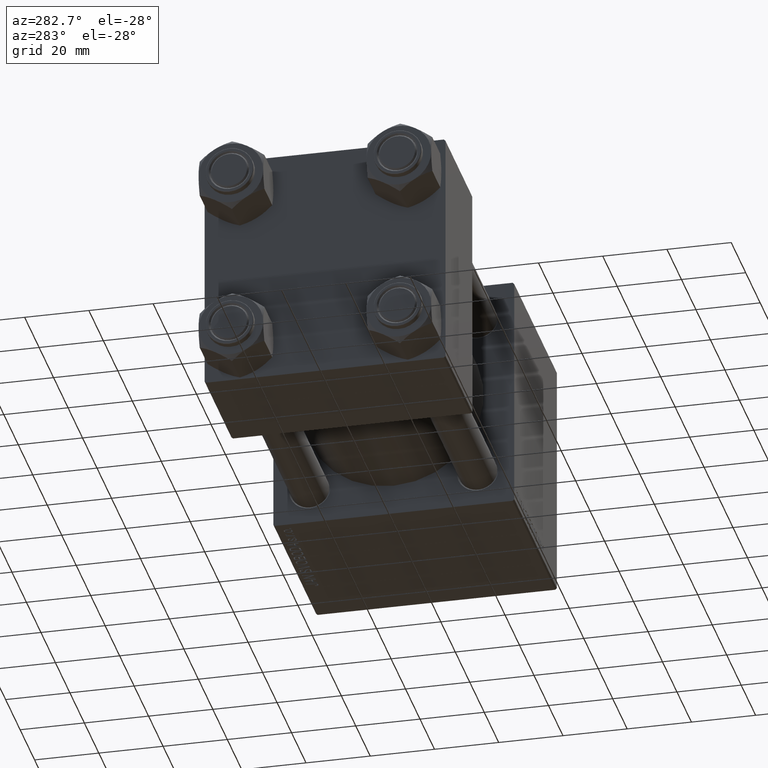
[diagram: clean part render]
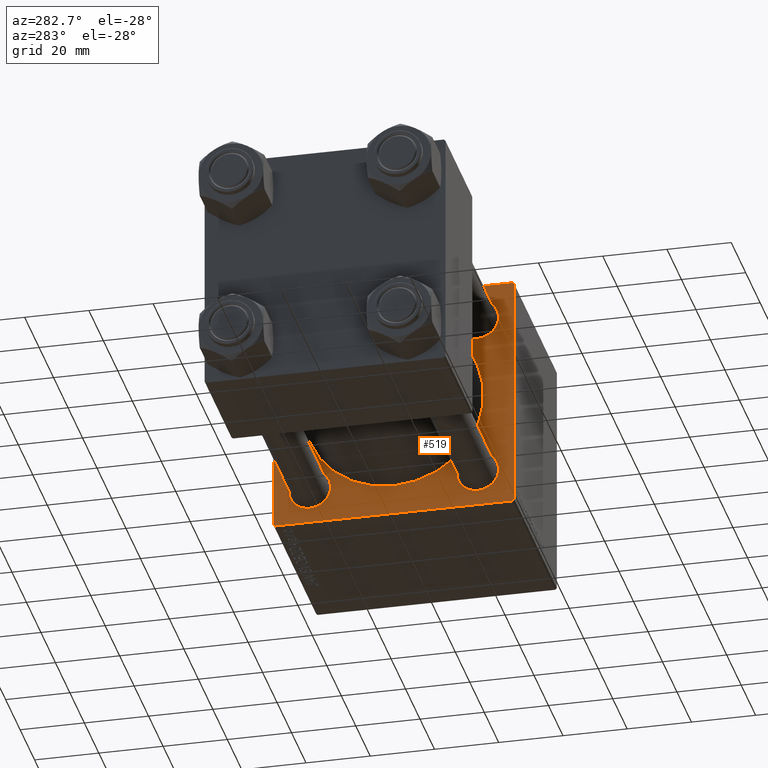
[diagram: same view with one face highlighted and labeled with its STEP entity id]
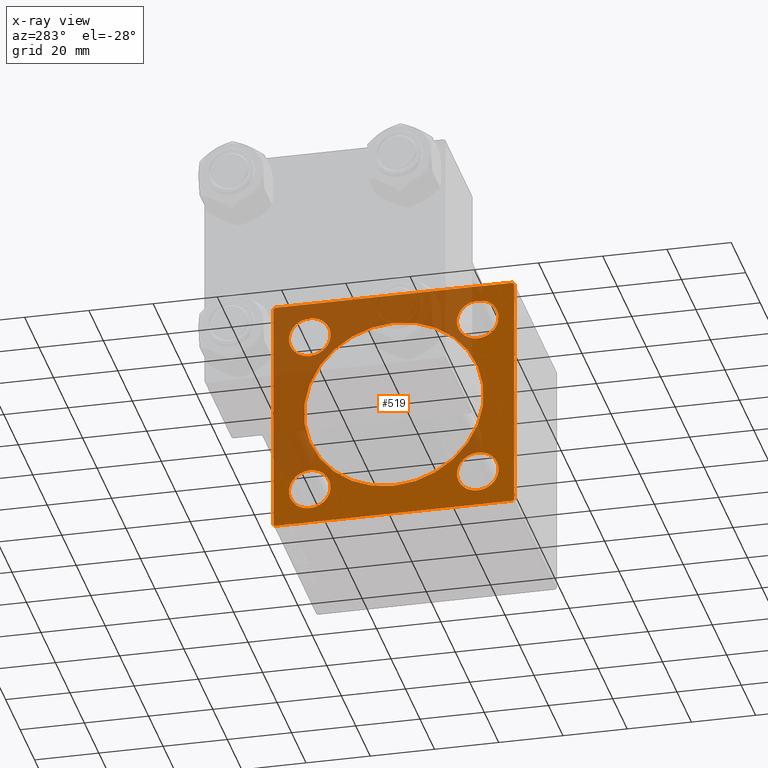
[diagram: x-ray of the same camera — body ghosted, the highlighted face saturated]
A machine part, auxiliary view. The second image highlights one B-rep face of the part: STEP entity #519.
The next image is the same camera in x-ray: the body ghosted, the highlighted face saturated — about 46% of this face is hidden behind the body in this view.
In plain terms, the highlighted planar face has unit normal (-1, 0, 0).
Its self-contained STEP definition (entity closure, byte-faithful):
#201 = VECTOR ( 'NONE', #18116, 1000.000000000000000 ) ;
#243 = CARTESIAN_POINT ( 'NONE',  ( 95.00000000000000000, 37.50000000000000000, 36.99999999999999289 ) ) ;
#381 = VERTEX_POINT ( 'NONE', #15387 ) ;
#503 = EDGE_LOOP ( 'NONE', ( #21857, #36087 ) ) ;
#519 = ADVANCED_FACE ( 'NONE', ( #40491, #33139, #28566, #1910, #44047, #48353 ), #24755, .T. ) ;
#652 = CARTESIAN_POINT ( 'NONE',  ( 95.00000000000000000, -2.602085213965210642E-15, 28.00000000000000000 ) ) ;
#1149 = DIRECTION ( 'NONE',  ( 0.000000000000000000, 0.000000000000000000, -1.000000000000000000 ) ) ;
#1871 = AXIS2_PLACEMENT_3D ( 'NONE', #29195, #24614, #6097 ) ;
#1910 = FACE_BOUND ( 'NONE', #36842, .T. ) ;
#1943 = AXIS2_PLACEMENT_3D ( 'NONE', #19942, #44295, #1149 ) ;
#2584 = CARTESIAN_POINT ( 'NONE',  ( 95.00000000000000000, 37.00000000000000000, -37.50000000000000000 ) ) ;
#2642 = CARTESIAN_POINT ( 'NONE',  ( 95.00000000000000000, 37.50000000000000000, -37.50000000000000000 ) ) ;
#4689 = ORIENTED_EDGE ( 'NONE', *, *, #6693, .T. ) ;
#4897 = VERTEX_POINT ( 'NONE', #19484 ) ;
#5385 = CARTESIAN_POINT ( 'NONE',  ( 95.00000000000000000, 26.14999999999999858, 26.15000000000000213 ) ) ;
#5469 = ORIENTED_EDGE ( 'NONE', *, *, #31813, .F. ) ;
#5474 = DIRECTION ( 'NONE',  ( 0.000000000000000000, 0.000000000000000000, 1.000000000000000000 ) ) ;
#5627 = DIRECTION ( 'NONE',  ( 1.000000000000000000, 0.000000000000000000, -0.000000000000000000 ) ) ;
#5824 = LINE ( 'NONE', #36804, #11855 ) ;
#5868 = DIRECTION ( 'NONE',  ( 0.000000000000000000, -0.7071067811865671127, 0.7071067811865279218 ) ) ;
#6097 = DIRECTION ( 'NONE',  ( 0.000000000000000000, 0.000000000000000000, 1.000000000000000000 ) ) ;
#6678 = ORIENTED_EDGE ( 'NONE', *, *, #15017, .T. ) ;
#6693 = EDGE_CURVE ( 'NONE', #381, #32028, #18940, .T. ) ;
#7335 = CARTESIAN_POINT ( 'NONE',  ( 95.00000000000000000, 26.14999999999999858, -19.64999999999998792 ) ) ;
#7951 = DIRECTION ( 'NONE',  ( 1.000000000000000000, 0.000000000000000000, -0.000000000000000000 ) ) ;
#8470 = CIRCLE ( 'NONE', #27927, 6.500000000000015987 ) ;
#9007 = ORIENTED_EDGE ( 'NONE', *, *, #16150, .T. ) ;
#9192 = DIRECTION ( 'NONE',  ( 0.000000000000000000, 0.000000000000000000, 1.000000000000000000 ) ) ;
#9490 = ORIENTED_EDGE ( 'NONE', *, *, #46058, .T. ) ;
#9602 = VERTEX_POINT ( 'NONE', #243 ) ;
#10574 = DIRECTION ( 'NONE',  ( 1.000000000000000000, 0.000000000000000000, -0.000000000000000000 ) ) ;
#10590 = EDGE_CURVE ( 'NONE', #15857, #16969, #10803, .T. ) ;
#10690 = CARTESIAN_POINT ( 'NONE',  ( 95.00000000000000000, -26.14999999999999147, -32.65000000000002700 ) ) ;
#10803 = CIRCLE ( 'NONE', #39176, 6.500000000000015987 ) ;
#10857 = CIRCLE ( 'NONE', #23830, 6.500000000000015987 ) ;
#11097 = CARTESIAN_POINT ( 'NONE',  ( 95.00000000000000000, 26.14999999999999858, 32.65000000000001990 ) ) ;
#11327 = CARTESIAN_POINT ( 'NONE',  ( 95.00000000000000000, 26.14999999999999858, 26.15000000000000213 ) ) ;
#11564 = CIRCLE ( 'NONE', #1871, 6.500000000000015987 ) ;
#11566 = CARTESIAN_POINT ( 'NONE',  ( 95.00000000000000000, -37.24999999999997158, 37.24999999999997158 ) ) ;
#11855 = VECTOR ( 'NONE', #25870, 1000.000000000000000 ) ;
#12827 = ORIENTED_EDGE ( 'NONE', *, *, #24582, .T. ) ;
#13774 = VERTEX_POINT ( 'NONE', #26415 ) ;
#13827 = CARTESIAN_POINT ( 'NONE',  ( 95.00000000000000000, 0.000000000000000000, 0.000000000000000000 ) ) ;
#14042 = VERTEX_POINT ( 'NONE', #37519 ) ;
#15017 = EDGE_CURVE ( 'NONE', #9602, #16272, #27857, .T. ) ;
#15387 = CARTESIAN_POINT ( 'NONE',  ( 95.00000000000000000, -37.50000000000000000, 36.99999999999995026 ) ) ;
#15857 = VERTEX_POINT ( 'NONE', #29743 ) ;
#16150 = EDGE_CURVE ( 'NONE', #44329, #27515, #22811, .T. ) ;
#16272 = VERTEX_POINT ( 'NONE', #38280 ) ;
#16447 = ORIENTED_EDGE ( 'NONE', *, *, #42515, .T. ) ;
#16748 = CARTESIAN_POINT ( 'NONE',  ( 95.00000000000000000, 37.00000000000000000, 37.49999999999999289 ) ) ;
#16969 = VERTEX_POINT ( 'NONE', #10690 ) ;
#17282 = VERTEX_POINT ( 'NONE', #29630 ) ;
#17496 = ORIENTED_EDGE ( 'NONE', *, *, #19003, .T. ) ;
#18116 = DIRECTION ( 'NONE',  ( 0.000000000000000000, -1.000000000000000000, 0.000000000000000000 ) ) ;
#18940 = LINE ( 'NONE', #11566, #23663 ) ;
#19003 = EDGE_CURVE ( 'NONE', #16272, #34470, #45031, .T. ) ;
#19066 = EDGE_CURVE ( 'NONE', #34470, #13774, #33612, .T. ) ;
#19241 = DIRECTION ( 'NONE',  ( 0.000000000000000000, 0.000000000000000000, 1.000000000000000000 ) ) ;
#19484 = CARTESIAN_POINT ( 'NONE',  ( 95.00000000000000000, -26.14999999999999147, 32.65000000000003411 ) ) ;
#19648 = EDGE_CURVE ( 'NONE', #4897, #14042, #11564, .T. ) ;
#19768 = VECTOR ( 'NONE', #5868, 1000.000000000000000 ) ;
#19942 = CARTESIAN_POINT ( 'NONE',  ( 95.00000000000000000, -2.602085213965210642E-15, 0.000000000000000000 ) ) ;
#19992 = CARTESIAN_POINT ( 'NONE',  ( 95.00000000000000000, 37.50000000000000000, 37.49999999999999289 ) ) ;
#21103 = LINE ( 'NONE', #32796, #33107 ) ;
#21857 = ORIENTED_EDGE ( 'NONE', *, *, #45041, .T. ) ;
#22368 = CIRCLE ( 'NONE', #33725, 6.500000000000015987 ) ;
#22515 = ORIENTED_EDGE ( 'NONE', *, *, #10590, .T. ) ;
#22811 = CIRCLE ( 'NONE', #23638, 28.00000000000000000 ) ;
#23427 = DIRECTION ( 'NONE',  ( 0.000000000000000000, 0.000000000000000000, 1.000000000000000000 ) ) ;
#23638 = AXIS2_PLACEMENT_3D ( 'NONE', #32993, #40096, #48702 ) ;
#23663 = VECTOR ( 'NONE', #30873, 1000.000000000000114 ) ;
#23830 = AXIS2_PLACEMENT_3D ( 'NONE', #30803, #7951, #23427 ) ;
#24294 = DIRECTION ( 'NONE',  ( 0.000000000000000000, 0.000000000000000000, -1.000000000000000000 ) ) ;
#24582 = EDGE_CURVE ( 'NONE', #27515, #44329, #45822, .T. ) ;
#24614 = DIRECTION ( 'NONE',  ( 1.000000000000000000, 0.000000000000000000, -0.000000000000000000 ) ) ;
#24755 = PLANE ( 'NONE',  #31687 ) ;
#24997 = DIRECTION ( 'NONE',  ( -0.000000000000000000, -0.7071067811865425767, -0.7071067811865525687 ) ) ;
#25461 = VERTEX_POINT ( 'NONE', #7335 ) ;
#25853 = CIRCLE ( 'NONE', #44512, 6.500000000000008882 ) ;
#25870 = DIRECTION ( 'NONE',  ( 0.000000000000000000, -9.251858538542972814E-17, -1.000000000000000000 ) ) ;
#25917 = LINE ( 'NONE', #45444, #19768 ) ;
#26225 = AXIS2_PLACEMENT_3D ( 'NONE', #5385, #47005, #9192 ) ;
#26415 = CARTESIAN_POINT ( 'NONE',  ( 95.00000000000000000, -36.99999999999998579, -37.50000000000000000 ) ) ;
#26554 = AXIS2_PLACEMENT_3D ( 'NONE', #31677, #34484, #19241 ) ;
#26860 = VERTEX_POINT ( 'NONE', #33811 ) ;
#27361 = CARTESIAN_POINT ( 'NONE',  ( 95.00000000000000000, 26.14999999999999858, -26.15000000000000213 ) ) ;
#27365 = EDGE_LOOP ( 'NONE', ( #32749, #16447 ) ) ;
#27515 = VERTEX_POINT ( 'NONE', #652 ) ;
#27659 = EDGE_CURVE ( 'NONE', #31721, #9602, #32886, .T. ) ;
#27720 = CARTESIAN_POINT ( 'NONE',  ( 95.00000000000000000, -37.50000000000000711, -37.00000000000000711 ) ) ;
#27857 = LINE ( 'NONE', #19992, #49543 ) ;
#27927 = AXIS2_PLACEMENT_3D ( 'NONE', #43711, #5627, #28992 ) ;
#28269 = ORIENTED_EDGE ( 'NONE', *, *, #30875, .T. ) ;
#28566 = FACE_BOUND ( 'NONE', #36483, .T. ) ;
#28992 = DIRECTION ( 'NONE',  ( 0.000000000000000000, 0.000000000000000000, 1.000000000000000000 ) ) ;
#29195 = CARTESIAN_POINT ( 'NONE',  ( 95.00000000000000000, -26.14999999999999147, 26.15000000000000924 ) ) ;
#29630 = CARTESIAN_POINT ( 'NONE',  ( 95.00000000000000000, 26.14999999999999858, 19.64999999999999147 ) ) ;
#29743 = CARTESIAN_POINT ( 'NONE',  ( 95.00000000000000000, -26.14999999999999147, -19.64999999999999503 ) ) ;
#30608 = ORIENTED_EDGE ( 'NONE', *, *, #40342, .F. ) ;
#30643 = EDGE_LOOP ( 'NONE', ( #47876, #9490, #5469, #4689, #30608, #37043, #6678, #17496 ) ) ;
#30803 = CARTESIAN_POINT ( 'NONE',  ( 95.00000000000000000, -26.14999999999999147, 26.15000000000000924 ) ) ;
#30873 = DIRECTION ( 'NONE',  ( -0.000000000000000000, 0.7071067811865474617, 0.7071067811865474617 ) ) ;
#30875 = EDGE_CURVE ( 'NONE', #25461, #26860, #22368, .T. ) ;
#31677 = CARTESIAN_POINT ( 'NONE',  ( 95.00000000000000000, 26.14999999999999858, -26.15000000000000213 ) ) ;
#31687 = AXIS2_PLACEMENT_3D ( 'NONE', #13827, #40249, #5474 ) ;
#31721 = VERTEX_POINT ( 'NONE', #16748 ) ;
#31813 = EDGE_CURVE ( 'NONE', #381, #37301, #5824, .T. ) ;
#32028 = VERTEX_POINT ( 'NONE', #39770 ) ;
#32225 = CARTESIAN_POINT ( 'NONE',  ( 95.00000000000000000, 8.269258236473776482E-16, -28.00000000000000000 ) ) ;
#32749 = ORIENTED_EDGE ( 'NONE', *, *, #19648, .T. ) ;
#32796 = CARTESIAN_POINT ( 'NONE',  ( 95.00000000000000000, 37.50000000000000000, 37.49999999999999289 ) ) ;
#32886 = LINE ( 'NONE', #44552, #46565 ) ;
#32993 = CARTESIAN_POINT ( 'NONE',  ( 95.00000000000000000, -2.602085213965210642E-15, 0.000000000000000000 ) ) ;
#33107 = VECTOR ( 'NONE', #48267, 1000.000000000000000 ) ;
#33139 = FACE_BOUND ( 'NONE', #503, .T. ) ;
#33284 = ORIENTED_EDGE ( 'NONE', *, *, #33928, .T. ) ;
#33612 = LINE ( 'NONE', #2642, #201 ) ;
#33725 = AXIS2_PLACEMENT_3D ( 'NONE', #27361, #42842, #39285 ) ;
#33811 = CARTESIAN_POINT ( 'NONE',  ( 95.00000000000000000, 26.14999999999999858, -32.65000000000001990 ) ) ;
#33928 = EDGE_CURVE ( 'NONE', #26860, #25461, #43572, .T. ) ;
#34078 = EDGE_LOOP ( 'NONE', ( #12827, #9007 ) ) ;
#34470 = VERTEX_POINT ( 'NONE', #2584 ) ;
#34484 = DIRECTION ( 'NONE',  ( 1.000000000000000000, 0.000000000000000000, -0.000000000000000000 ) ) ;
#35747 = VERTEX_POINT ( 'NONE', #11097 ) ;
#36087 = ORIENTED_EDGE ( 'NONE', *, *, #37916, .T. ) ;
#36483 = EDGE_LOOP ( 'NONE', ( #28269, #33284 ) ) ;
#36701 = VECTOR ( 'NONE', #24997, 999.9999999999998863 ) ;
#36778 = CIRCLE ( 'NONE', #26225, 6.500000000000008882 ) ;
#36804 = CARTESIAN_POINT ( 'NONE',  ( 95.00000000000000000, -37.50000000000000000, 37.49999999999997868 ) ) ;
#36842 = EDGE_LOOP ( 'NONE', ( #22515, #45309 ) ) ;
#37043 = ORIENTED_EDGE ( 'NONE', *, *, #27659, .T. ) ;
#37301 = VERTEX_POINT ( 'NONE', #27720 ) ;
#37519 = CARTESIAN_POINT ( 'NONE',  ( 95.00000000000000000, -26.14999999999999147, 19.64999999999999147 ) ) ;
#37916 = EDGE_CURVE ( 'NONE', #17282, #35747, #25853, .T. ) ;
#38280 = CARTESIAN_POINT ( 'NONE',  ( 95.00000000000000000, 37.50000000000000000, -36.99999999999999289 ) ) ;
#39176 = AXIS2_PLACEMENT_3D ( 'NONE', #46640, #46891, #46382 ) ;
#39285 = DIRECTION ( 'NONE',  ( 0.000000000000000000, 0.000000000000000000, 1.000000000000000000 ) ) ;
#39770 = CARTESIAN_POINT ( 'NONE',  ( 95.00000000000000000, -36.99999999999997158, 37.49999999999997868 ) ) ;
#40096 = DIRECTION ( 'NONE',  ( 1.000000000000000000, 0.000000000000000000, 0.000000000000000000 ) ) ;
#40249 = DIRECTION ( 'NONE',  ( -1.000000000000000000, -0.000000000000000000, 0.000000000000000000 ) ) ;
#40342 = EDGE_CURVE ( 'NONE', #31721, #32028, #21103, .T. ) ;
#40491 = FACE_BOUND ( 'NONE', #27365, .T. ) ;
#41481 = DIRECTION ( 'NONE',  ( 0.000000000000000000, 0.7071067811865474617, -0.7071067811865474617 ) ) ;
#42515 = EDGE_CURVE ( 'NONE', #14042, #4897, #10857, .T. ) ;
#42842 = DIRECTION ( 'NONE',  ( 1.000000000000000000, 0.000000000000000000, -0.000000000000000000 ) ) ;
#43572 = CIRCLE ( 'NONE', #26554, 6.500000000000015987 ) ;
#43711 = CARTESIAN_POINT ( 'NONE',  ( 95.00000000000000000, -26.14999999999999147, -26.15000000000000924 ) ) ;
#44047 = FACE_BOUND ( 'NONE', #34078, .T. ) ;
#44290 = CARTESIAN_POINT ( 'NONE',  ( 95.00000000000000000, 37.25000000000026290, -37.24999999999974420 ) ) ;
#44295 = DIRECTION ( 'NONE',  ( 1.000000000000000000, 0.000000000000000000, 0.000000000000000000 ) ) ;
#44329 = VERTEX_POINT ( 'NONE', #32225 ) ;
#44512 = AXIS2_PLACEMENT_3D ( 'NONE', #11327, #10574, #45110 ) ;
#44552 = CARTESIAN_POINT ( 'NONE',  ( 95.00000000000000000, 37.25000000000000000, 37.25000000000000000 ) ) ;
#45031 = LINE ( 'NONE', #44290, #36701 ) ;
#45041 = EDGE_CURVE ( 'NONE', #35747, #17282, #36778, .T. ) ;
#45110 = DIRECTION ( 'NONE',  ( 0.000000000000000000, 0.000000000000000000, 1.000000000000000000 ) ) ;
#45309 = ORIENTED_EDGE ( 'NONE', *, *, #46696, .T. ) ;
#45444 = CARTESIAN_POINT ( 'NONE',  ( 95.00000000000000000, -37.24999999999896261, -37.25000000000103029 ) ) ;
#45822 = CIRCLE ( 'NONE', #1943, 28.00000000000000000 ) ;
#46058 = EDGE_CURVE ( 'NONE', #13774, #37301, #25917, .T. ) ;
#46382 = DIRECTION ( 'NONE',  ( 0.000000000000000000, 0.000000000000000000, 1.000000000000000000 ) ) ;
#46565 = VECTOR ( 'NONE', #41481, 1000.000000000000114 ) ;
#46640 = CARTESIAN_POINT ( 'NONE',  ( 95.00000000000000000, -26.14999999999999147, -26.15000000000000924 ) ) ;
#46696 = EDGE_CURVE ( 'NONE', #16969, #15857, #8470, .T. ) ;
#46891 = DIRECTION ( 'NONE',  ( 1.000000000000000000, 0.000000000000000000, -0.000000000000000000 ) ) ;
#47005 = DIRECTION ( 'NONE',  ( 1.000000000000000000, 0.000000000000000000, -0.000000000000000000 ) ) ;
#47876 = ORIENTED_EDGE ( 'NONE', *, *, #19066, .T. ) ;
#48267 = DIRECTION ( 'NONE',  ( 0.000000000000000000, -1.000000000000000000, -1.850371707708594316E-16 ) ) ;
#48353 = FACE_OUTER_BOUND ( 'NONE', #30643, .T. ) ;
#48702 = DIRECTION ( 'NONE',  ( 0.000000000000000000, 0.000000000000000000, -1.000000000000000000 ) ) ;
#49543 = VECTOR ( 'NONE', #24294, 1000.000000000000000 ) ;